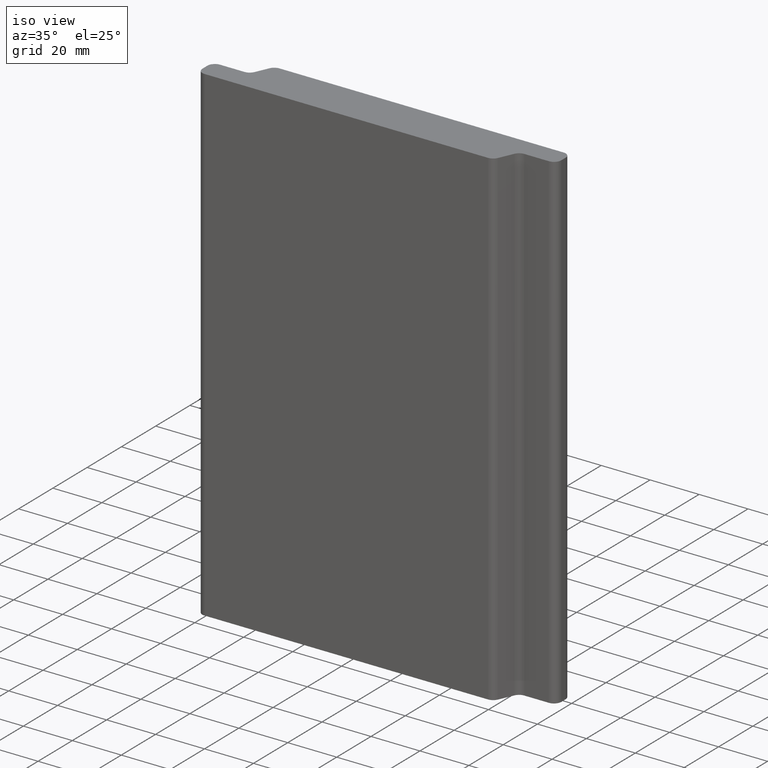
[diagram: clean part render]
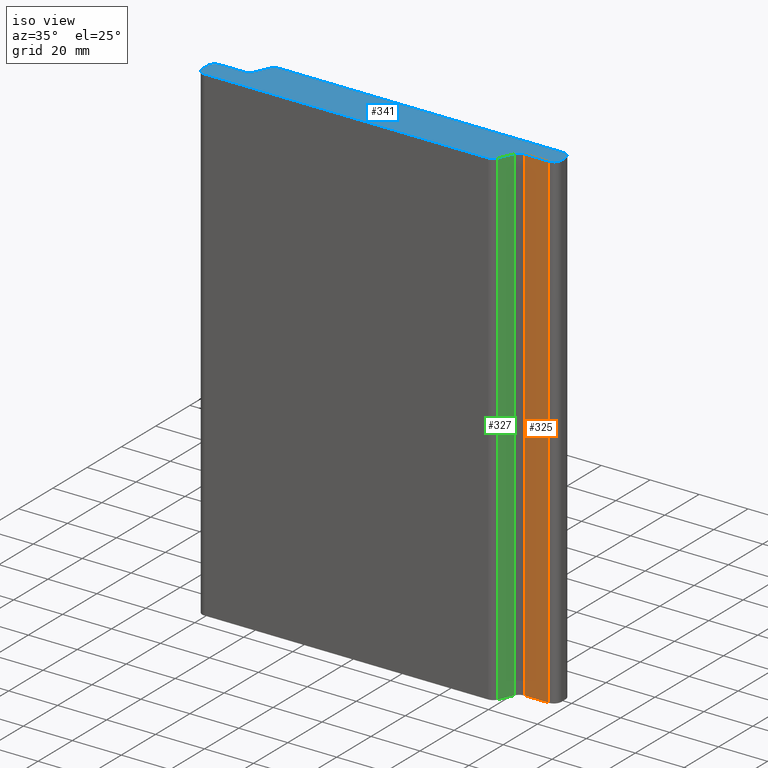
[diagram: same view with three faces highlighted in distinct colors, each labeled with its STEP entity id]
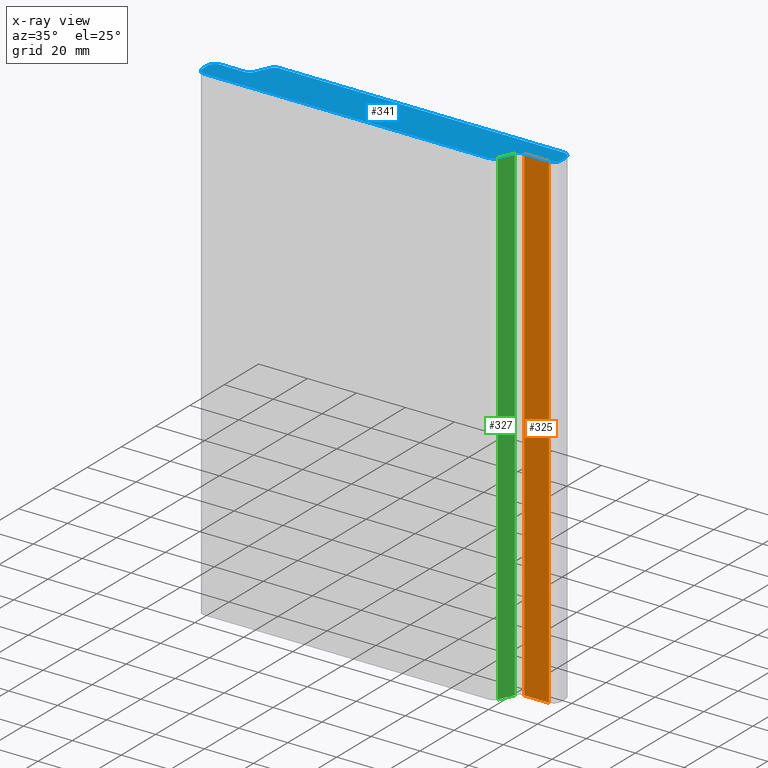
[diagram: x-ray of the same camera — body ghosted, the three highlighted faces saturated]
A machine part, iso view with three faces highlighted in distinct colors.
The next image is the same camera in x-ray (body ghosted, the three faces saturated) — at least one of them is partly hidden behind the body in this view.
Their STEP definitions:

[orange] entity #325 — the highlighted planar face has unit normal (-0, -1, 0).
#39=FACE_OUTER_BOUND('',#57,.T.);
#57=EDGE_LOOP('',(#219,#220,#221,#222));
#75=LINE('',#497,#107);
#76=LINE('',#499,#108);
#77=LINE('',#501,#109);
#78=LINE('',#502,#110);
#107=VECTOR('',#395,10.);
#108=VECTOR('',#396,10.);
#109=VECTOR('',#397,10.);
#110=VECTOR('',#398,10.);
#139=VERTEX_POINT('',#495);
#140=VERTEX_POINT('',#496);
#141=VERTEX_POINT('',#498);
#142=VERTEX_POINT('',#500);
#171=EDGE_CURVE('',#139,#140,#75,.T.);
#172=EDGE_CURVE('',#140,#141,#76,.T.);
#173=EDGE_CURVE('',#142,#141,#77,.T.);
#174=EDGE_CURVE('',#139,#142,#78,.T.);
#219=ORIENTED_EDGE('',*,*,#171,.T.);
#220=ORIENTED_EDGE('',*,*,#172,.T.);
#221=ORIENTED_EDGE('',*,*,#173,.F.);
#222=ORIENTED_EDGE('',*,*,#174,.F.);
#315=PLANE('',#357);
#325=ADVANCED_FACE('',(#39),#315,.T.);
#357=AXIS2_PLACEMENT_3D('',#494,#393,#394);
#393=DIRECTION('center_axis',(-2.05619220719211E-8,-1.,0.));
#394=DIRECTION('ref_axis',(1.,-2.05619220719211E-8,0.));
#395=DIRECTION('',(1.,-2.05619220719211E-8,0.));
#396=DIRECTION('',(0.,0.,1.));
#397=DIRECTION('',(1.,-2.05619220719211E-8,0.));
#398=DIRECTION('',(0.,0.,1.));
#494=CARTESIAN_POINT('Origin',(47.9705823498481,9.50000002470876,0.));
#495=CARTESIAN_POINT('',(47.9705823498481,9.50000002470876,0.));
#496=CARTESIAN_POINT('',(58.0223594149081,9.4999998180249,0.));
#497=CARTESIAN_POINT('',(47.9705823498481,9.50000002470876,0.));
#498=CARTESIAN_POINT('',(58.0223594149081,9.4999998180249,200.));
#499=CARTESIAN_POINT('',(58.0223594149081,9.4999998180249,0.));
#500=CARTESIAN_POINT('',(47.9705823498481,9.50000002470876,200.));
#501=CARTESIAN_POINT('',(47.9705823498481,9.50000002470876,200.));
#502=CARTESIAN_POINT('',(47.9705823498481,9.50000002470876,0.));

[blue] entity #341 — the highlighted planar face has unit normal (0, 0, 1).
#16=CIRCLE('',#360,2.99999999999998);
#18=CIRCLE('',#364,2.99999999595948);
#20=CIRCLE('',#368,2.99999999996857);
#22=CIRCLE('',#372,2.99999999996301);
#24=CIRCLE('',#376,2.99999999999999);
#26=CIRCLE('',#380,2.99999999482045);
#28=CIRCLE('',#384,2.99999999999422);
#30=CIRCLE('',#388,3.00000005179335);
#55=FACE_OUTER_BOUND('',#73,.T.);
#73=EDGE_LOOP('',(#283,#284,#285,#286,#287,#288,#289,#290,#291,#292,#293,
#294,#295,#296,#297,#298));
#77=LINE('',#501,#109);
#81=LINE('',#513,#113);
#85=LINE('',#525,#117);
#89=LINE('',#537,#121);
#93=LINE('',#549,#125);
#97=LINE('',#561,#129);
#101=LINE('',#573,#133);
#105=LINE('',#585,#137);
#109=VECTOR('',#397,10.);
#113=VECTOR('',#409,10.);
#117=VECTOR('',#421,10.);
#121=VECTOR('',#433,10.);
#125=VECTOR('',#445,10.);
#129=VECTOR('',#457,10.);
#133=VECTOR('',#469,10.);
#137=VECTOR('',#481,10.);
#141=VERTEX_POINT('',#498);
#142=VERTEX_POINT('',#500);
#144=VERTEX_POINT('',#506);
#146=VERTEX_POINT('',#512);
#148=VERTEX_POINT('',#518);
#150=VERTEX_POINT('',#524);
#152=VERTEX_POINT('',#530);
#154=VERTEX_POINT('',#536);
#156=VERTEX_POINT('',#542);
#158=VERTEX_POINT('',#548);
#160=VERTEX_POINT('',#554);
#162=VERTEX_POINT('',#560);
#164=VERTEX_POINT('',#566);
#166=VERTEX_POINT('',#572);
#168=VERTEX_POINT('',#578);
#170=VERTEX_POINT('',#584);
#173=EDGE_CURVE('',#142,#141,#77,.T.);
#176=EDGE_CURVE('',#144,#142,#16,.T.);
#179=EDGE_CURVE('',#146,#144,#81,.T.);
#182=EDGE_CURVE('',#148,#146,#18,.T.);
#185=EDGE_CURVE('',#150,#148,#85,.T.);
#188=EDGE_CURVE('',#152,#150,#20,.T.);
#191=EDGE_CURVE('',#154,#152,#89,.T.);
#194=EDGE_CURVE('',#156,#154,#22,.T.);
#197=EDGE_CURVE('',#158,#156,#93,.T.);
#200=EDGE_CURVE('',#160,#158,#24,.T.);
#203=EDGE_CURVE('',#162,#160,#97,.T.);
#206=EDGE_CURVE('',#164,#162,#26,.T.);
#209=EDGE_CURVE('',#166,#164,#101,.T.);
#212=EDGE_CURVE('',#168,#166,#28,.T.);
#215=EDGE_CURVE('',#170,#168,#105,.T.);
#218=EDGE_CURVE('',#141,#170,#30,.T.);
#283=ORIENTED_EDGE('',*,*,#218,.T.);
#284=ORIENTED_EDGE('',*,*,#215,.T.);
#285=ORIENTED_EDGE('',*,*,#212,.T.);
#286=ORIENTED_EDGE('',*,*,#209,.T.);
#287=ORIENTED_EDGE('',*,*,#206,.T.);
#288=ORIENTED_EDGE('',*,*,#203,.T.);
#289=ORIENTED_EDGE('',*,*,#200,.T.);
#290=ORIENTED_EDGE('',*,*,#197,.T.);
#291=ORIENTED_EDGE('',*,*,#194,.T.);
#292=ORIENTED_EDGE('',*,*,#191,.T.);
#293=ORIENTED_EDGE('',*,*,#188,.T.);
#294=ORIENTED_EDGE('',*,*,#185,.T.);
#295=ORIENTED_EDGE('',*,*,#182,.T.);
#296=ORIENTED_EDGE('',*,*,#179,.T.);
#297=ORIENTED_EDGE('',*,*,#176,.T.);
#298=ORIENTED_EDGE('',*,*,#173,.T.);
#323=PLANE('',#389);
#341=ADVANCED_FACE('',(#55),#323,.T.);
#360=AXIS2_PLACEMENT_3D('',#507,#403,#404);
#364=AXIS2_PLACEMENT_3D('',#519,#415,#416);
#368=AXIS2_PLACEMENT_3D('',#531,#427,#428);
#372=AXIS2_PLACEMENT_3D('',#543,#439,#440);
#376=AXIS2_PLACEMENT_3D('',#555,#451,#452);
#380=AXIS2_PLACEMENT_3D('',#567,#463,#464);
#384=AXIS2_PLACEMENT_3D('',#579,#475,#476);
#388=AXIS2_PLACEMENT_3D('',#589,#487,#488);
#389=AXIS2_PLACEMENT_3D('',#590,#489,#490);
#397=DIRECTION('',(1.,-2.05619220719211E-8,0.));
#403=DIRECTION('center_axis',(0.,0.,-1.));
#404=DIRECTION('ref_axis',(2.05619225350045E-8,1.,0.));
#409=DIRECTION('',(0.406736643924803,0.9135454572646,0.));
#415=DIRECTION('center_axis',(0.,0.,1.));
#416=DIRECTION('ref_axis',(-1.09164973504214E-9,-1.,0.));
#421=DIRECTION('',(1.,-1.0916506482526E-9,0.));
#427=DIRECTION('center_axis',(0.,0.,1.));
#428=DIRECTION('ref_axis',(-1.,-3.47869881052861E-14,0.));
#433=DIRECTION('',(4.44089218590522E-14,-1.,0.));
#439=DIRECTION('center_axis',(0.,0.,1.));
#440=DIRECTION('ref_axis',(3.75699471537785E-12,1.,0.));
#445=DIRECTION('',(-1.,3.75708151689634E-12,0.));
#451=DIRECTION('center_axis',(0.,0.,-1.));
#452=DIRECTION('ref_axis',(-3.75699471533154E-12,-1.,0.));
#457=DIRECTION('',(-0.406736642942366,-0.913545457702009,0.));
#463=DIRECTION('center_axis',(0.,0.,1.));
#464=DIRECTION('ref_axis',(9.29348451652492E-10,1.,0.));
#469=DIRECTION('',(-1.,9.29340653877338E-10,0.));
#475=DIRECTION('center_axis',(0.,0.,1.));
#476=DIRECTION('ref_axis',(1.,-2.22044604925459E-15,0.));
#481=DIRECTION('',(1.42108545158405E-14,1.,0.));
#487=DIRECTION('center_axis',(0.,0.,1.));
#488=DIRECTION('ref_axis',(-2.05619192194194E-8,-1.,0.));
#489=DIRECTION('center_axis',(0.,0.,1.));
#490=DIRECTION('ref_axis',(1.,0.,0.));
#498=CARTESIAN_POINT('',(58.0223594149081,9.4999998180249,200.));
#500=CARTESIAN_POINT('',(47.9705823498481,9.50000002470876,200.));
#501=CARTESIAN_POINT('',(47.9705823498481,9.50000002470876,200.));
#506=CARTESIAN_POINT('',(45.2299459163685,7.72020995648318,200.));
#507=CARTESIAN_POINT('Origin',(47.9705822881623,6.50000002470877,200.));
#512=CARTESIAN_POINT('',(42.5851005520204,1.77979002172476,200.));
#513=CARTESIAN_POINT('',(42.5851005520204,1.77979002172475,200.));
#518=CARTESIAN_POINT('',(39.8444641806428,-4.41037772969111E-8,200.));
#519=CARTESIAN_POINT('Origin',(39.8444641839178,2.9999999518557,200.));
#524=CARTESIAN_POINT('',(-75.9776404749192,8.33395730204245E-8,200.));
#525=CARTESIAN_POINT('',(-75.9776404749192,8.23334978640429E-8,200.));
#530=CARTESIAN_POINT('',(-78.9776404716128,3.00000008330803,200.));
#531=CARTESIAN_POINT('Origin',(-75.9776404716442,3.00000008330814,200.));
#536=CARTESIAN_POINT('',(-78.9776404716129,6.00000002426274,200.));
#537=CARTESIAN_POINT('',(-78.9776404716129,6.00000002426274,200.));
#542=CARTESIAN_POINT('',(-75.9776404716386,9.00000002422587,200.));
#543=CARTESIAN_POINT('Origin',(-75.9776404716499,6.00000002426285,200.));
#548=CARTESIAN_POINT('',(-65.9258632515248,9.0000000241881,200.));
#549=CARTESIAN_POINT('',(-65.9258632515248,9.0000000241881,200.));
#554=CARTESIAN_POINT('',(-63.1852268784075,10.779790095361,200.));
#555=CARTESIAN_POINT('Origin',(-65.9258632515135,12.0000000241881,200.));
#560=CARTESIAN_POINT('',(-60.7629959023434,16.2202099446295,200.));
#561=CARTESIAN_POINT('',(-60.7629959023434,16.2202099446295,200.));
#566=CARTESIAN_POINT('',(-58.022359531181,18.0000000127296,200.));
#567=CARTESIAN_POINT('Origin',(-58.0223595339691,15.0000000179091,200.));
#572=CARTESIAN_POINT('',(58.022359531181,17.9999999048845,200.));
#573=CARTESIAN_POINT('',(58.022359531181,17.9999999048845,200.));
#578=CARTESIAN_POINT('',(61.0223595283873,14.9999999048903,200.));
#579=CARTESIAN_POINT('Origin',(58.022359528393,14.9999999048903,200.));
#584=CARTESIAN_POINT('',(61.0223595283872,12.4999998698182,200.));
#585=CARTESIAN_POINT('',(61.0223595283872,12.4999998698182,200.));
#589=CARTESIAN_POINT('Origin',(58.0223594765939,12.4999998698183,200.));
#590=CARTESIAN_POINT('Origin',(-8.97764047161282,8.99999998431291,200.));

[green] entity #327 — the highlighted planar face has unit normal (0.9135, -0.4067, 0).
#41=FACE_OUTER_BOUND('',#59,.T.);
#59=EDGE_LOOP('',(#227,#228,#229,#230));
#79=LINE('',#508,#111);
#80=LINE('',#511,#112);
#81=LINE('',#513,#113);
#82=LINE('',#514,#114);
#111=VECTOR('',#405,10.);
#112=VECTOR('',#408,10.);
#113=VECTOR('',#409,10.);
#114=VECTOR('',#410,10.);
#143=VERTEX_POINT('',#504);
#144=VERTEX_POINT('',#506);
#145=VERTEX_POINT('',#510);
#146=VERTEX_POINT('',#512);
#177=EDGE_CURVE('',#143,#144,#79,.T.);
#178=EDGE_CURVE('',#145,#143,#80,.T.);
#179=EDGE_CURVE('',#146,#144,#81,.T.);
#180=EDGE_CURVE('',#145,#146,#82,.T.);
#227=ORIENTED_EDGE('',*,*,#178,.T.);
#228=ORIENTED_EDGE('',*,*,#177,.T.);
#229=ORIENTED_EDGE('',*,*,#179,.F.);
#230=ORIENTED_EDGE('',*,*,#180,.F.);
#316=PLANE('',#361);
#327=ADVANCED_FACE('',(#41),#316,.T.);
#361=AXIS2_PLACEMENT_3D('',#509,#406,#407);
#405=DIRECTION('',(0.,0.,1.));
#406=DIRECTION('center_axis',(0.9135454572646,-0.406736643924803,0.));
#407=DIRECTION('ref_axis',(0.406736643924803,0.9135454572646,0.));
#408=DIRECTION('',(0.406736643924803,0.9135454572646,0.));
#409=DIRECTION('',(0.406736643924803,0.9135454572646,0.));
#410=DIRECTION('',(0.,0.,1.));
#504=CARTESIAN_POINT('',(45.2299459163685,7.72020995648318,0.));
#506=CARTESIAN_POINT('',(45.2299459163685,7.72020995648318,200.));
#508=CARTESIAN_POINT('',(45.2299459163685,7.72020995648318,0.));
#509=CARTESIAN_POINT('Origin',(42.5851005520204,1.77979002172475,0.));
#510=CARTESIAN_POINT('',(42.5851005520204,1.77979002172475,0.));
#511=CARTESIAN_POINT('',(42.5851005520204,1.77979002172475,0.));
#512=CARTESIAN_POINT('',(42.5851005520204,1.77979002172476,200.));
#513=CARTESIAN_POINT('',(42.5851005520204,1.77979002172475,200.));
#514=CARTESIAN_POINT('',(42.5851005520204,1.77979002172475,0.));